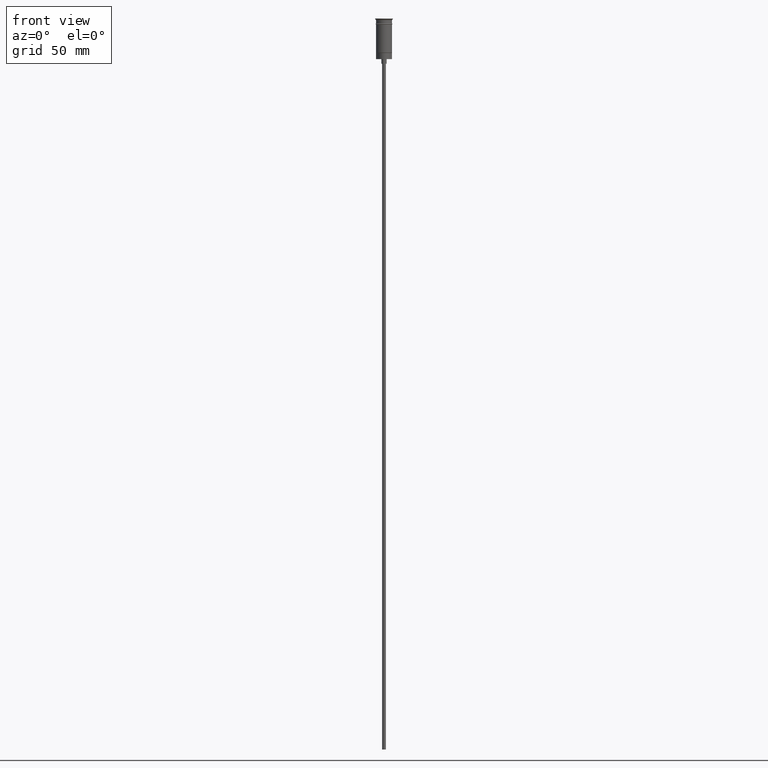
[diagram: clean part render]
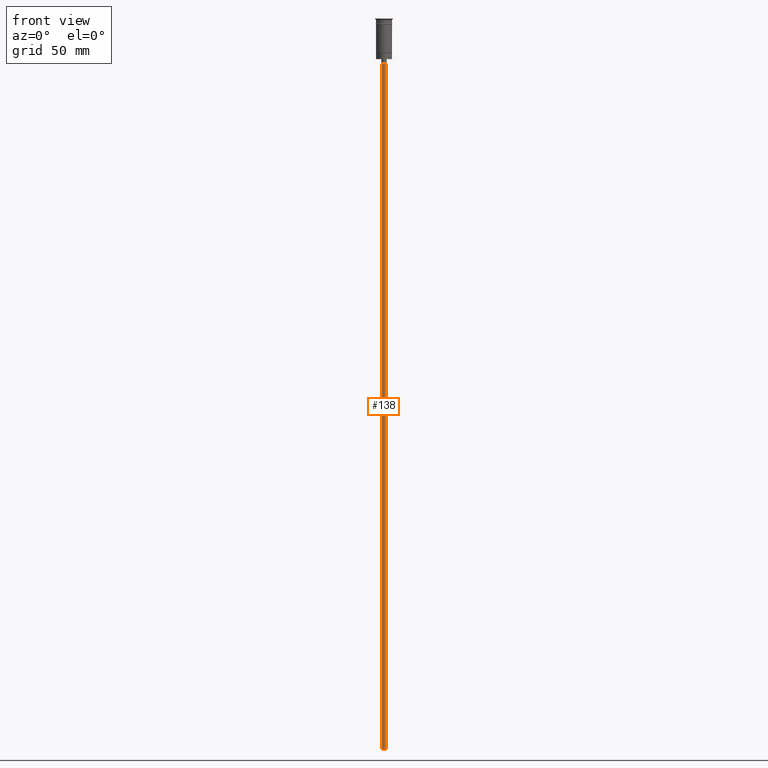
[diagram: same view with one face highlighted and labeled with its STEP entity id]
A machine part, front view. The second image highlights one B-rep face of the part: STEP entity #138.
In plain terms, the highlighted cylindrical surface (edge-blend (fillet) strip) has radius 1.25 mm, axis along (-0, -0, 1).
Its self-contained STEP definition (entity closure, byte-faithful):
#5 = VECTOR ( 'NONE', #481, 1000.000000000000000 ) ;
#64 = CIRCLE ( 'NONE', #687, 1.250000000000000000 ) ;
#88 = VERTEX_POINT ( 'NONE', #1268 ) ;
#122 = AXIS2_PLACEMENT_3D ( 'NONE', #628, #244, #760 ) ;
#138 = ADVANCED_FACE ( 'NONE', ( #796 ), #439, .T. ) ;
#146 = ORIENTED_EDGE ( 'NONE', *, *, #384, .F. ) ;
#147 = ORIENTED_EDGE ( 'NONE', *, *, #1234, .F. ) ;
#244 = DIRECTION ( 'NONE',  ( 0.000000000000000000, 0.000000000000000000, -1.000000000000000000 ) ) ;
#384 = EDGE_CURVE ( 'NONE', #1101, #1490, #64, .T. ) ;
#422 = DIRECTION ( 'NONE',  ( -0.000000000000000000, -0.000000000000000000, 1.000000000000000000 ) ) ;
#439 = CYLINDRICAL_SURFACE ( 'NONE', #842, 1.250000000000000000 ) ;
#449 = LINE ( 'NONE', #1595, #5 ) ;
#455 = VECTOR ( 'NONE', #1056, 1000.000000000000000 ) ;
#481 = DIRECTION ( 'NONE',  ( -0.000000000000000000, -0.000000000000000000, 1.000000000000000000 ) ) ;
#537 = CARTESIAN_POINT ( 'NONE',  ( -1.250000000000000000, 1.530808498934191571E-16, -476.5000000000000568 ) ) ;
#550 = EDGE_LOOP ( 'NONE', ( #147, #146, #1473, #852 ) ) ;
#628 = CARTESIAN_POINT ( 'NONE',  ( 0.000000000000000000, 0.000000000000000000, -29.50000000000000000 ) ) ;
#631 = VERTEX_POINT ( 'NONE', #663 ) ;
#663 = CARTESIAN_POINT ( 'NONE',  ( 1.250000000000000000, 0.000000000000000000, -29.50000000000000000 ) ) ;
#687 = AXIS2_PLACEMENT_3D ( 'NONE', #1134, #1503, #1084 ) ;
#706 = CIRCLE ( 'NONE', #122, 1.250000000000000000 ) ;
#760 = DIRECTION ( 'NONE',  ( -1.000000000000000000, 0.000000000000000000, 0.000000000000000000 ) ) ;
#796 = FACE_OUTER_BOUND ( 'NONE', #550, .T. ) ;
#842 = AXIS2_PLACEMENT_3D ( 'NONE', #1185, #422, #933 ) ;
#852 = ORIENTED_EDGE ( 'NONE', *, *, #1508, .T. ) ;
#907 = CARTESIAN_POINT ( 'NONE',  ( 1.250000000000000000, 0.000000000000000000, -476.5000000000000568 ) ) ;
#933 = DIRECTION ( 'NONE',  ( 1.000000000000000000, 0.000000000000000000, 0.000000000000000000 ) ) ;
#1056 = DIRECTION ( 'NONE',  ( -0.000000000000000000, -0.000000000000000000, 1.000000000000000000 ) ) ;
#1084 = DIRECTION ( 'NONE',  ( -1.000000000000000000, 0.000000000000000000, 0.000000000000000000 ) ) ;
#1101 = VERTEX_POINT ( 'NONE', #907 ) ;
#1134 = CARTESIAN_POINT ( 'NONE',  ( 0.000000000000000000, 0.000000000000000000, -476.5000000000000568 ) ) ;
#1164 = CARTESIAN_POINT ( 'NONE',  ( -1.250000000000000000, 1.530808498934191571E-16, -476.5000000000000568 ) ) ;
#1185 = CARTESIAN_POINT ( 'NONE',  ( 0.000000000000000000, 0.000000000000000000, -476.5000000000000568 ) ) ;
#1205 = LINE ( 'NONE', #537, #455 ) ;
#1234 = EDGE_CURVE ( 'NONE', #1490, #88, #1205, .T. ) ;
#1268 = CARTESIAN_POINT ( 'NONE',  ( -1.250000000000000000, 1.530808498934191571E-16, -29.50000000000000000 ) ) ;
#1379 = EDGE_CURVE ( 'NONE', #1101, #631, #449, .T. ) ;
#1473 = ORIENTED_EDGE ( 'NONE', *, *, #1379, .T. ) ;
#1490 = VERTEX_POINT ( 'NONE', #1164 ) ;
#1503 = DIRECTION ( 'NONE',  ( 0.000000000000000000, 0.000000000000000000, -1.000000000000000000 ) ) ;
#1508 = EDGE_CURVE ( 'NONE', #631, #88, #706, .T. ) ;
#1595 = CARTESIAN_POINT ( 'NONE',  ( 1.250000000000000000, 0.000000000000000000, -476.5000000000000568 ) ) ;